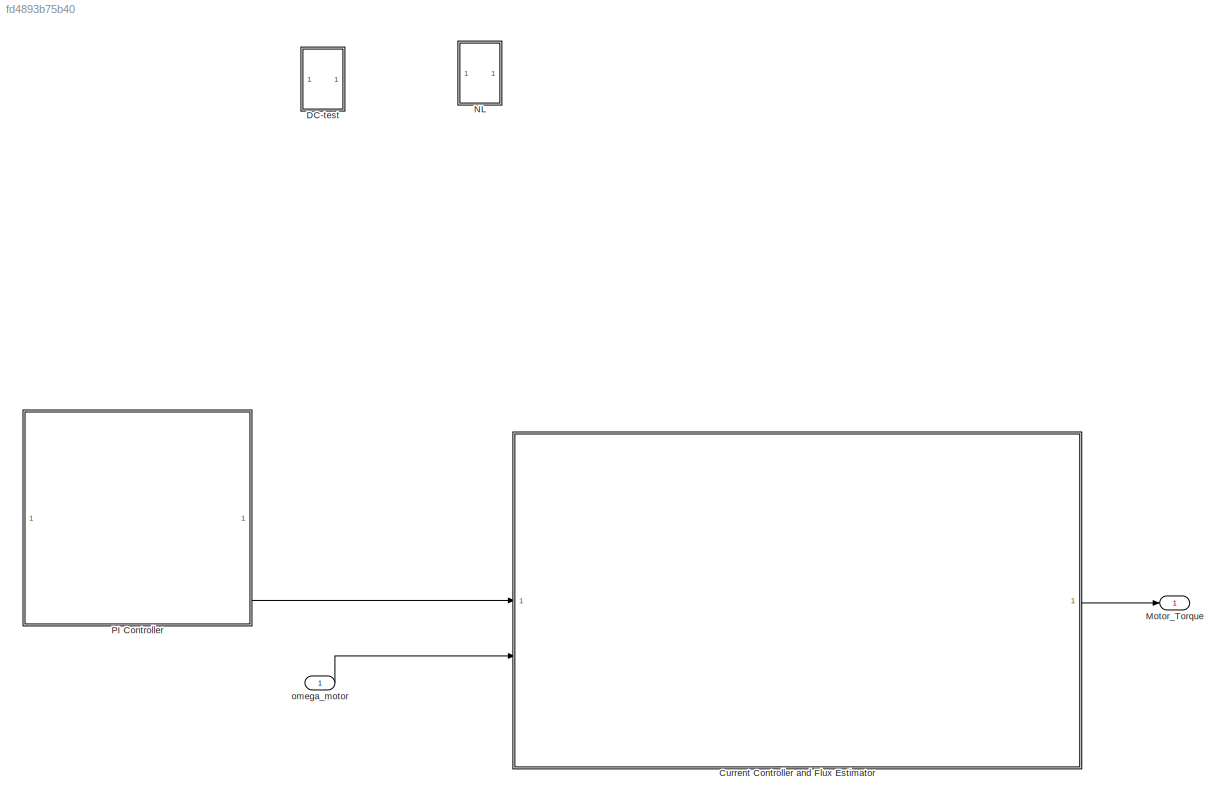
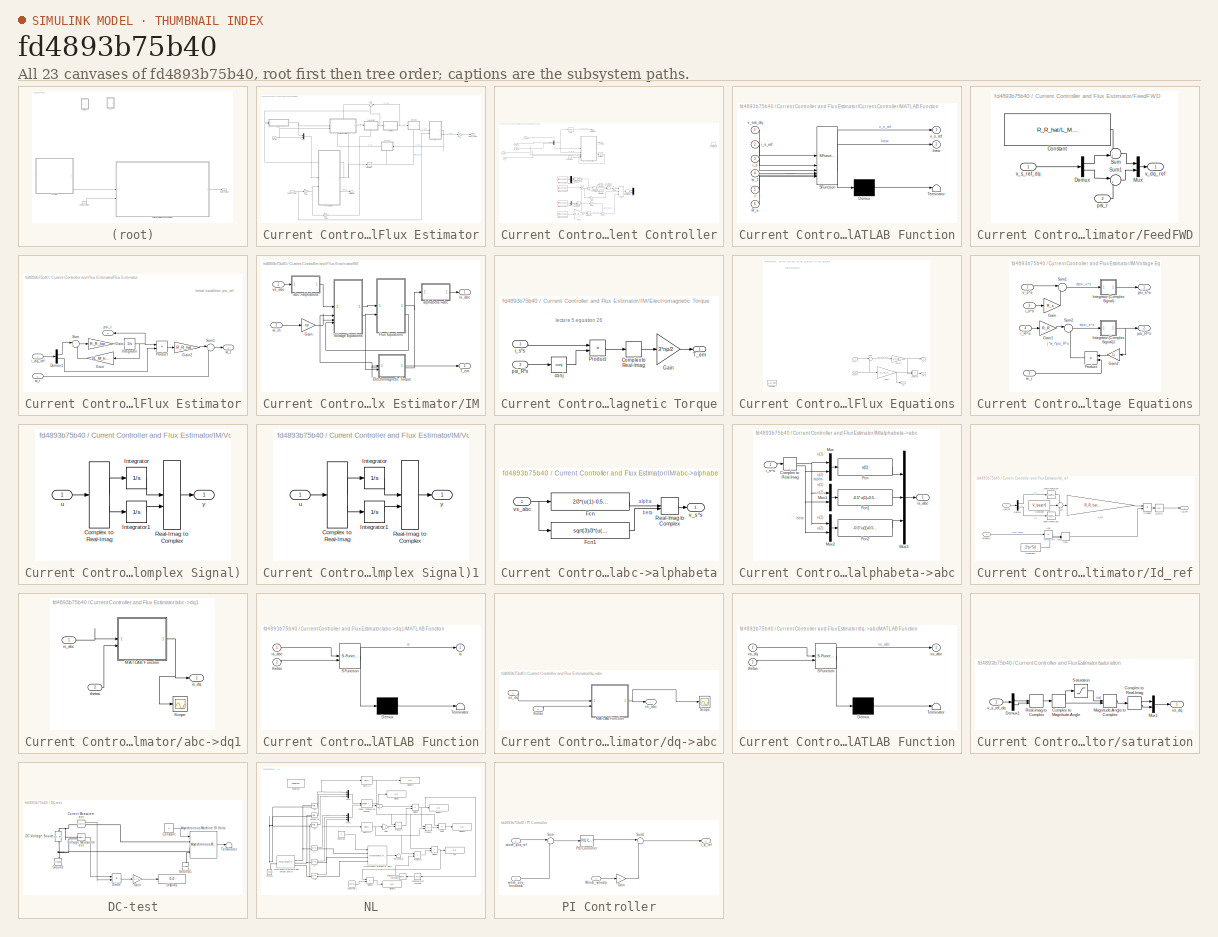
[diagram: thumbnail index - all 23 canvases of the model, root first then tree order]
MODEL slx_fd4893b75b40
KIND model
CONFIG AbsTol = auto
CONFIG EnableMultiTasking = off
CONFIG FixedStep = auto
CONFIG MaxStep = auto
CONFIG MinStep = auto
CONFIG RelTol = 1e-3
CONFIG SampleTimeConstraint = Unconstrained
CONFIG SolverName = VariableStepAuto
CONFIG StartTime = 0.0
CONFIG StopTime = 10.0
WORKSPACE source: MATLAB code (in-file)
WORKSPACE m_pl = 1000
WORKSPACE r_d = 0.035
WORKSPACE ig = 5
WORKSPACE J_drum = 0.0006125
WORKSPACE b_hat = 0.001
WORKSPACE np = 2
WORKSPACE P_N = 15000
WORKSPACE n_eff = 0.917
WORKSPACE n_rpm = 1469
WORKSPACE pf = 0.84
WORKSPACE I_N = 29
WORKSPACE Is_In = 8
WORKSPACE T_n = 97.5
WORKSPACE Ti_Tn = 3.1
WORKSPACE Tb_Tn = 3.6
WORKSPACE J_motor = 0.13
WORKSPACE R_R_hat = 0.2052
WORKSPACE X_M_opt = 15.1061
WORKSPACE X_sig_opt = 0.3774
WORKSPACE omega_rN = 307.6666
WORKSPACE omega_N = 314.1593
WORKSPACE omega1 = omega_rN  (= 307.6666)
WORKSPACE L_M_hat = X_M_opt/omega1  (= 0.0490989272154)
WORKSPACE L_sig_hat = X_sig_opt/omega1  (= 0.00122665248682)
WORKSPACE R_s = 0.619
WORKSPACE psi_ref = 20*P_N/(sqrt(2)*pi*np*I_N*n_rpm)
WORKSPACE V_base = 400*sqrt(2)/sqrt(3)
WORKSPACE I_max = I_N*3  (= 87)
WORKSPACE t_r = 1e-3  (= 0.001)
WORKSPACE w_BW = log(9)/t_r
WORKSPACE w_BWs = 0.1*w_BW
WORKSPACE J_hat = m_pl*((r_d/(ig))^2) + J_drum*((1/ig)^2) + J_motor  (= 0.1790245)
WORKSPACE kps = 2*J_hat*w_BWs/(3*np^2*psi_ref)
WORKSPACE kis = w_BWs^2*2*J_hat/(3*np^2*psi_ref)
WORKSPACE Ba = 2*J_hat/(3*np^2*psi_ref)*(w_BWs-b_hat/J_hat)
WORKSPACE kp = w_BW*L_sig_hat
WORKSPACE ki = w_BW^2*L_sig_hat
WORKSPACE Ra = w_BW*L_sig_hat - (R_R_hat + R_s)
WORKSPACE R = R_R_hat + R_s  (= 0.8242)
BLOCK [SubSystem] Current Controller and Flux Estimator
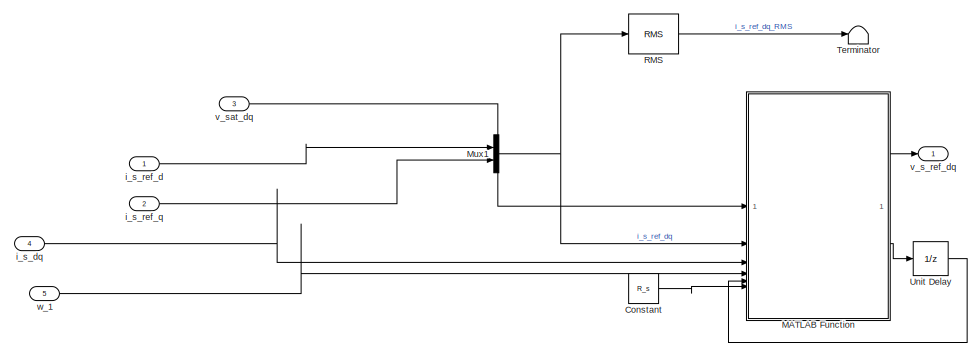
[diagram: Current Controller and Flux Estimator/Current Controller - part 1/3, top left region]
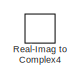
[diagram: Current Controller and Flux Estimator/Current Controller - part 2/3, top right region]
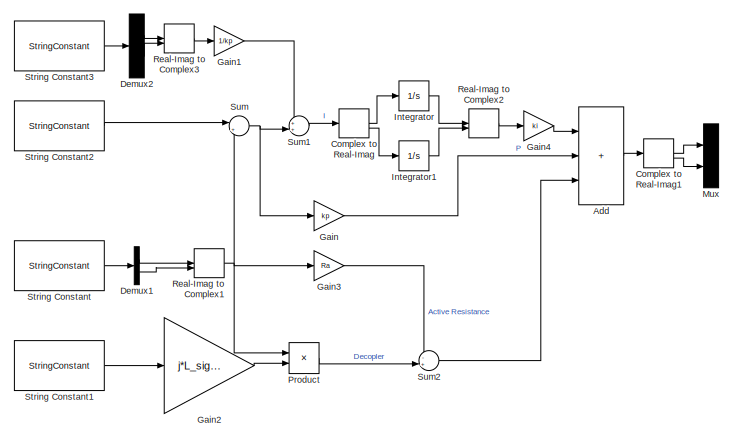
[diagram: Current Controller and Flux Estimator/Current Controller - part 3/3, bottom center region]
BLOCK [SubSystem] Current Controller and Flux Estimator/Current Controller
  PortSchema = {"entries":[{"content":{"sides":[{"content":{"connectorIds":["In1","In2"]},"type":"ConnectorPlacement.EquallySpacedRectSide","uuid":"97c548b6-6990-4323-a853-1e64e742285c"},{"content":{"connectorIds":["Out1"],"side":"RIGHT"},"type":"ConnectorPlacement.EquallySpacedRectSide","uuid":"cacb7644-0a67-4de4-9bb2-887734fe331a"},{"content":{"connectorIds":["In3"],"side":"TOP"},"type":"ConnectorPlacement.Equ...<+406ch>
BLOCK [Sum] Current Controller and Flux Estimator/Current Controller/Add
  Commented = on
  IconShape = rectangular
  Inputs = +++
BLOCK [ComplexToRealImag] Current Controller and Flux Estimator/Current Controller/Complex to Real-Imag
  Commented = on
BLOCK [ComplexToRealImag] Current Controller and Flux Estimator/Current Controller/Complex to Real-Imag1
  Commented = on
BLOCK [Constant] Current Controller and Flux Estimator/Current Controller/Constant
  Value = R_s
BLOCK [Demux] Current Controller and Flux Estimator/Current Controller/Demux1
  Commented = on
  Outputs = 2
BLOCK [Demux] Current Controller and Flux Estimator/Current Controller/Demux2
  Commented = on
  Outputs = 2
BLOCK [Gain] Current Controller and Flux Estimator/Current Controller/Gain
  Commented = on
  Gain = kp
BLOCK [Gain] Current Controller and Flux Estimator/Current Controller/Gain1
  Commented = on
  Gain = 1/kp
BLOCK [Gain] Current Controller and Flux Estimator/Current Controller/Gain2
  Commented = on
  Gain = j*L_sig_hat
BLOCK [Gain] Current Controller and Flux Estimator/Current Controller/Gain3
  Commented = on
  Gain = Ra
BLOCK [Gain] Current Controller and Flux Estimator/Current Controller/Gain4
  Commented = on
  Gain = ki
BLOCK [Integrator] Current Controller and Flux Estimator/Current Controller/Integrator
  Commented = on
BLOCK [Integrator] Current Controller and Flux Estimator/Current Controller/Integrator1
  Commented = on
BLOCK [SubSystem] Current Controller and Flux Estimator/Current Controller/MATLAB Function
  ErrorFcn = Stateflow.Translate.translate
  PermitHierarchicalResolution = ExplicitOnly
  SFBlockType = MATLAB Function
  TreatAsAtomicUnit = on
BLOCK [Demux] Current Controller and Flux Estimator/Current Controller/MATLAB Function/ Demux 
  Outputs = 1
BLOCK [S-Function] Current Controller and Flux Estimator/Current Controller/MATLAB Function/ SFunction 
  EnableBusSupport = off
  FunctionName = sf_sfun
  Parameters = L_sig_hat,R_R_hat,Ts,w_BW
  PortCounts = [6 3]
  SFcnIsStateOwnerBlock = off
  SFunctionDeploymentMode = off
  Tag = Stateflow S-Function 5
BLOCK [Terminator] Current Controller and Flux Estimator/Current Controller/MATLAB Function/ Terminator 
BLOCK [Inport] Current Controller and Flux Estimator/Current Controller/MATLAB Function/I
  Port = 5
BLOCK [Outport] Current Controller and Flux Estimator/Current Controller/MATLAB Function/Inew
  Port = 2
BLOCK [Inport] Current Controller and Flux Estimator/Current Controller/MATLAB Function/R_s
  Port = 6
BLOCK [Inport] Current Controller and Flux Estimator/Current Controller/MATLAB Function/i_s
  Port = 3
BLOCK [Inport] Current Controller and Flux Estimator/Current Controller/MATLAB Function/i_s_ref
  Port = 2
BLOCK [Outport] Current Controller and Flux Estimator/Current Controller/MATLAB Function/v_s_ref
BLOCK [Inport] Current Controller and Flux Estimator/Current Controller/MATLAB Function/v_sat_dq
BLOCK [Inport] Current Controller and Flux Estimator/Current Controller/MATLAB Function/w_1
  Port = 4
BLOCK [Mux] Current Controller and Flux Estimator/Current Controller/Mux
  Commented = on
  DisplayOption = bar
  Inputs = 2
BLOCK [Mux] Current Controller and Flux Estimator/Current Controller/Mux1
  DisplayOption = bar
  Inputs = 2
BLOCK [Product] Current Controller and Flux Estimator/Current Controller/Product
  Commented = on
BLOCK [Reference] Current Controller and Flux Estimator/Current Controller/RMS  REF=spsRMSLib/RMS
  SourceBlock = spsRMSLib/RMS
  SourceType = RMS
BLOCK [RealImagToComplex] Current Controller and Flux Estimator/Current Controller/Real-Imag to Complex1
  Commented = on
BLOCK [RealImagToComplex] Current Controller and Flux Estimator/Current Controller/Real-Imag to Complex2
  Commented = on
BLOCK [RealImagToComplex] Current Controller and Flux Estimator/Current Controller/Real-Imag to Complex3
  Commented = on
BLOCK [RealImagToComplex] Current Controller and Flux Estimator/Current Controller/Real-Imag to Complex4
BLOCK [StringConstant] Current Controller and Flux Estimator/Current Controller/String Constant
  Commented = on
  String = i_s_dq
BLOCK [StringConstant] Current Controller and Flux Estimator/Current Controller/String Constant1
  Commented = on
  String = w_1
BLOCK [StringConstant] Current Controller and Flux Estimator/Current Controller/String Constant2
  Commented = on
  String = i_s_ref_dq
BLOCK [StringConstant] Current Controller and Flux Estimator/Current Controller/String Constant3
  Commented = on
  String = v_sat_dq
BLOCK [Sum] Current Controller and Flux Estimator/Current Controller/Sum
  Commented = on
  Inputs = |+-
BLOCK [Sum] Current Controller and Flux Estimator/Current Controller/Sum1
  Commented = on
  Inputs = ++|
BLOCK [Sum] Current Controller and Flux Estimator/Current Controller/Sum2
  Commented = on
  Inputs = -+|
BLOCK [Terminator] Current Controller and Flux Estimator/Current Controller/Terminator
BLOCK [UnitDelay] Current Controller and Flux Estimator/Current Controller/Unit Delay
  HasFrameUpgradeWarning = on
  SampleTime = -1
BLOCK [Inport] Current Controller and Flux Estimator/Current Controller/i_s_dq
  Port = 4
BLOCK [Inport] Current Controller and Flux Estimator/Current Controller/i_s_ref_d
BLOCK [Inport] Current Controller and Flux Estimator/Current Controller/i_s_ref_q
  Port = 2
BLOCK [Outport] Current Controller and Flux Estimator/Current Controller/v_s_ref_dq
  PortDimensions = 2
BLOCK [Inport] Current Controller and Flux Estimator/Current Controller/v_sat_dq
  Port = 3
BLOCK [Inport] Current Controller and Flux Estimator/Current Controller/w_1
  Port = 5
BLOCK [SubSystem] Current Controller and Flux Estimator/FeedFWD
  AttributesFormatString = %<MinAlgLoopOccurrences>
  PortSchema = {"entries":[{"content":{"sides":[{"content":{"connectorIds":["In1"]},"type":"ConnectorPlacement.EquallySpacedRectSide","uuid":"8794a64f-49ba-4da5-9b58-fd7208420cfd"},{"content":{"connectorIds":["Out1"],"side":"RIGHT"},"type":"ConnectorPlacement.EquallySpacedRectSide","uuid":"2b8697f1-b735-400e-94f4-d8410b9cec93"},{"content":{"connectorIds":[],"side":"TOP"},"type":"ConnectorPlacement.EquallySpacedR...<+389ch>
BLOCK [Constant] Current Controller and Flux Estimator/FeedFWD/Constant
  Value = R_R_hat/L_M_hat * psi_ref
BLOCK [Demux] Current Controller and Flux Estimator/FeedFWD/Demux
  Outputs = 2
BLOCK [Mux] Current Controller and Flux Estimator/FeedFWD/Mux
  DisplayOption = bar
  Inputs = 2
BLOCK [Sum] Current Controller and Flux Estimator/FeedFWD/Sum
  Inputs = -+|
BLOCK [Sum] Current Controller and Flux Estimator/FeedFWD/Sum1
  Inputs = |++
BLOCK [Inport] Current Controller and Flux Estimator/FeedFWD/psi_r
  Port = 2
BLOCK [Outport] Current Controller and Flux Estimator/FeedFWD/v_dq_ref
BLOCK [Inport] Current Controller and Flux Estimator/FeedFWD/v_s_ref_dq
BLOCK [SubSystem] Current Controller and Flux Estimator/Flux Estimator
BLOCK [Demux] Current Controller and Flux Estimator/Flux Estimator/Demux1
  Outputs = 2
BLOCK [Gain] Current Controller and Flux Estimator/Flux Estimator/Gain
  Gain = 1/L_M_hat
BLOCK [Gain] Current Controller and Flux Estimator/Flux Estimator/Gain1
  Gain = R_R_hat
BLOCK [Gain] Current Controller and Flux Estimator/Flux Estimator/Gain2
  Gain = R_R_hat
BLOCK [Integrator] Current Controller and Flux Estimator/Flux Estimator/Integrator
  InitialCondition = psi_ref
BLOCK [Product] Current Controller and Flux Estimator/Flux Estimator/Product
  Inputs = /*
BLOCK [Sum] Current Controller and Flux Estimator/Flux Estimator/Sum
  Inputs = |+-
BLOCK [Sum] Current Controller and Flux Estimator/Flux Estimator/Sum1
  Inputs = |++
BLOCK [Inport] Current Controller and Flux Estimator/Flux Estimator/i_dq_ref
BLOCK [Outport] Current Controller and Flux Estimator/Flux Estimator/psi_r
  NameLocation = top
  Port = 2
BLOCK [Outport] Current Controller and Flux Estimator/Flux Estimator/w_1
BLOCK [Inport] Current Controller and Flux Estimator/Flux Estimator/w_r
  Port = 2
BLOCK [Gain] Current Controller and Flux Estimator/Gain
  Gain = np
BLOCK [Gain] Current Controller and Flux Estimator/Gain1
  Gain = psi_ref
BLOCK [SubSystem] Current Controller and Flux Estimator/IM
BLOCK [SubSystem] Current Controller and Flux Estimator/IM/Electromagnetic Torque
BLOCK [ComplexToRealImag] Current Controller and Flux Estimator/IM/Electromagnetic Torque/Complex to Real-Imag
  Output = Imag
BLOCK [Gain] Current Controller and Flux Estimator/IM/Electromagnetic Torque/Gain
  Gain = 3*np/2
BLOCK [Product] Current Controller and Flux Estimator/IM/Electromagnetic Torque/Product
BLOCK [Outport] Current Controller and Flux Estimator/IM/Electromagnetic Torque/T_em
BLOCK [Math] Current Controller and Flux Estimator/IM/Electromagnetic Torque/conj
  Operator = conj
BLOCK [Inport] Current Controller and Flux Estimator/IM/Electromagnetic Torque/i_s^s
BLOCK [Inport] Current Controller and Flux Estimator/IM/Electromagnetic Torque/psi_R^s
  Port = 2
BLOCK [SubSystem] Current Controller and Flux Estimator/IM/Flux Equations
BLOCK [Constant] Current Controller and Flux Estimator/IM/Flux Equations/Constant
  Value = L_M_hat
BLOCK [Gain] Current Controller and Flux Estimator/IM/Flux Equations/Eq(16)
  Gain = 1/L_sig_hat
BLOCK [Gain] Current Controller and Flux Estimator/IM/Flux Equations/Gain1
  Gain = 1/L_M_hat
BLOCK [Outport] Current Controller and Flux Estimator/IM/Flux Equations/I_M
  Port = 3
BLOCK [Sum] Current Controller and Flux Estimator/IM/Flux Equations/Subtract
  IconShape = rectangular
  Inputs = +-
BLOCK [Sum] Current Controller and Flux Estimator/IM/Flux Equations/Sum
  Inputs = |+-
BLOCK [Outport] Current Controller and Flux Estimator/IM/Flux Equations/i_R^s
  Port = 2
BLOCK [Outport] Current Controller and Flux Estimator/IM/Flux Equations/i_s^s
BLOCK [Inport] Current Controller and Flux Estimator/IM/Flux Equations/psi_R^s
  Port = 2
BLOCK [Inport] Current Controller and Flux Estimator/IM/Flux Equations/psi_s^s
BLOCK [Gain] Current Controller and Flux Estimator/IM/Gain
  Gain = np
  OutDataTypeStr = Inherit: Same as input
  ParamDataTypeStr = Inherit: Same as input
  SaturateOnIntegerOverflow = on
BLOCK [Outport] Current Controller and Flux Estimator/IM/T_em
  Port = 2
BLOCK [SubSystem] Current Controller and Flux Estimator/IM/Voltage Equations
BLOCK [Gain] Current Controller and Flux Estimator/IM/Voltage Equations/Gain
  Gain = R_s
BLOCK [Gain] Current Controller and Flux Estimator/IM/Voltage Equations/Gain1
  Gain = R_R
BLOCK [Gain] Current Controller and Flux Estimator/IM/Voltage Equations/Gain2
  Gain = 1j
BLOCK [SubSystem] Current Controller and Flux Estimator/IM/Voltage Equations/Integrator (Complex Signal)
BLOCK [ComplexToRealImag] Current Controller and Flux Estimator/IM/Voltage Equations/Integrator (Complex Signal)/Complex to Real-Imag
BLOCK [Integrator] Current Controller and Flux Estimator/IM/Voltage Equations/Integrator (Complex Signal)/Integrator
  InitialCondition = psi_ref
BLOCK [Integrator] Current Controller and Flux Estimator/IM/Voltage Equations/Integrator (Complex Signal)/Integrator1
BLOCK [RealImagToComplex] Current Controller and Flux Estimator/IM/Voltage Equations/Integrator (Complex Signal)/Real-Imag to Complex
BLOCK [Inport] Current Controller and Flux Estimator/IM/Voltage Equations/Integrator (Complex Signal)/u
BLOCK [Outport] Current Controller and Flux Estimator/IM/Voltage Equations/Integrator (Complex Signal)/y
BLOCK [SubSystem] Current Controller and Flux Estimator/IM/Voltage Equations/Integrator (Complex Signal)1
BLOCK [ComplexToRealImag] Current Controller and Flux Estimator/IM/Voltage Equations/Integrator (Complex Signal)1/Complex to Real-Imag
BLOCK [Integrator] Current Controller and Flux Estimator/IM/Voltage Equations/Integrator (Complex Signal)1/Integrator
  InitialCondition = psi_ref
BLOCK [Integrator] Current Controller and Flux Estimator/IM/Voltage Equations/Integrator (Complex Signal)1/Integrator1
BLOCK [RealImagToComplex] Current Controller and Flux Estimator/IM/Voltage Equations/Integrator (Complex Signal)1/Real-Imag to Complex
BLOCK [Inport] Current Controller and Flux Estimator/IM/Voltage Equations/Integrator (Complex Signal)1/u
BLOCK [Outport] Current Controller and Flux Estimator/IM/Voltage Equations/Integrator (Complex Signal)1/y
BLOCK [Product] Current Controller and Flux Estimator/IM/Voltage Equations/Product
  RndMeth = Zero
BLOCK [Sum] Current Controller and Flux Estimator/IM/Voltage Equations/Sum1
  Inputs = |+-
BLOCK [Sum] Current Controller and Flux Estimator/IM/Voltage Equations/Sum2
  Inputs = |-+
BLOCK [Inport] Current Controller and Flux Estimator/IM/Voltage Equations/i_R^s
  Port = 4
BLOCK [Inport] Current Controller and Flux Estimator/IM/Voltage Equations/i_s^s
  Port = 2
BLOCK [Outport] Current Controller and Flux Estimator/IM/Voltage Equations/psi_R^s
  Port = 2
BLOCK [Outport] Current Controller and Flux Estimator/IM/Voltage Equations/psi_s^s
BLOCK [Inport] Current Controller and Flux Estimator/IM/Voltage Equations/v_s^s
BLOCK [Inport] Current Controller and Flux Estimator/IM/Voltage Equations/w_r
  Port = 3
BLOCK [SubSystem] Current Controller and Flux Estimator/IM/abc->alphabeta
BLOCK [Fcn] Current Controller and Flux Estimator/IM/abc->alphabeta/Fcn
  Expr = 2/3*(u(1)-0.5*u(2)-0.5*u(3))
BLOCK [Fcn] Current Controller and Flux Estimator/IM/abc->alphabeta/Fcn1
  Expr = sqrt(3)/3*(u(2)-u(3))
BLOCK [RealImagToComplex] Current Controller and Flux Estimator/IM/abc->alphabeta/Real-Imag to Complex
BLOCK [Outport] Current Controller and Flux Estimator/IM/abc->alphabeta/v_s^s
BLOCK [Inport] Current Controller and Flux Estimator/IM/abc->alphabeta/vs_abc
BLOCK [SubSystem] Current Controller and Flux Estimator/IM/alphabeta->abc
BLOCK [ComplexToRealImag] Current Controller and Flux Estimator/IM/alphabeta->abc/Complex to Real-Imag
BLOCK [Fcn] Current Controller and Flux Estimator/IM/alphabeta->abc/Fcn
  Expr = u(1)
BLOCK [Fcn] Current Controller and Flux Estimator/IM/alphabeta->abc/Fcn1
  Expr = -0.5*u(1)+0.5*sqrt(3)*u(2)
BLOCK [Fcn] Current Controller and Flux Estimator/IM/alphabeta->abc/Fcn2
  Expr = -0.5*u(1)-0.5*sqrt(3)*u(2)
BLOCK [Mux] Current Controller and Flux Estimator/IM/alphabeta->abc/Mux
  DisplayOption = bar
  Inputs = 2
BLOCK [Mux] Current Controller and Flux Estimator/IM/alphabeta->abc/Mux1
  DisplayOption = bar
  Inputs = 2
BLOCK [Mux] Current Controller and Flux Estimator/IM/alphabeta->abc/Mux2
  DisplayOption = bar
  Inputs = 2
BLOCK [Mux] Current Controller and Flux Estimator/IM/alphabeta->abc/Mux3
  DisplayOption = bar
  Inputs = 3
BLOCK [Inport] Current Controller and Flux Estimator/IM/alphabeta->abc/i_s^s
BLOCK [Outport] Current Controller and Flux Estimator/IM/alphabeta->abc/is_abc
BLOCK [Outport] Current Controller and Flux Estimator/IM/is_abc
BLOCK [Inport] Current Controller and Flux Estimator/IM/vs_abc
BLOCK [Inport] Current Controller and Flux Estimator/IM/w_m
  Port = 2
BLOCK [SubSystem] Current Controller and Flux Estimator/Id_ref
BLOCK [Abs] Current Controller and Flux Estimator/Id_ref/Abs
  SaturateOnIntegerOverflow = off
BLOCK [Constant] Current Controller and Flux Estimator/Id_ref/Constant
  Value = V_base^2
BLOCK [Constant] Current Controller and Flux Estimator/Id_ref/Constant2
  Value = 2*pi*50
BLOCK [Demux] Current Controller and Flux Estimator/Id_ref/Demux
  Outputs = 2
BLOCK [Integrator] Current Controller and Flux Estimator/Id_ref/Limits
  InitialCondition = psi_ref/L_M_hat
  LimitOutput = on
  LowerSaturationLimit = 0.1*psi_ref/L_M_hat
  UpperSaturationLimit = psi_ref/L_M_hat
BLOCK [Math] Current Controller and Flux Estimator/Id_ref/Math Function
  Operator = magnitude^2
BLOCK [Math] Current Controller and Flux Estimator/Id_ref/Math Function1
  Operator = magnitude^2
BLOCK [MinMax] Current Controller and Flux Estimator/Id_ref/Max
  Function = max
  Inputs = 2
BLOCK [Product] Current Controller and Flux Estimator/Id_ref/Product
  Inputs = */
BLOCK [Sum] Current Controller and Flux Estimator/Id_ref/Sum
  Inputs = -+-
BLOCK [Outport] Current Controller and Flux Estimator/Id_ref/i_d_ref
BLOCK [Gain] Current Controller and Flux Estimator/Id_ref/k_fw
  Gain = R_R_hat/((L_sig_hat^2)*V_base)
BLOCK [Inport] Current Controller and Flux Estimator/Id_ref/omega_1
  Port = 2
BLOCK [Inport] Current Controller and Flux Estimator/Id_ref/v_dq_ref
BLOCK [Integrator] Current Controller and Flux Estimator/Integrator
BLOCK [Outport] Current Controller and Flux Estimator/Motor_Torque
BLOCK [Mux] Current Controller and Flux Estimator/Mux
  DisplayOption = bar
  Inputs = 2
BLOCK [Sum] Current Controller and Flux Estimator/Sum
  Inputs = |+-
  NameLocation = top
BLOCK [Terminator] Current Controller and Flux Estimator/Terminator
BLOCK [SubSystem] Current Controller and Flux Estimator/abc->dq1
  NameLocation = top
  PortSchema = {"entries":[{"content":{"sides":[{"content":{"connectorIds":["In1"]},"type":"ConnectorPlacement.EquallySpacedRectSide","uuid":"c3863cce-4a98-427c-9e63-89298f679a84"},{"content":{"connectorIds":["Out1"],"side":"RIGHT"},"type":"ConnectorPlacement.EquallySpacedRectSide","uuid":"ae3c4991-ab62-4114-9bee-e9a7348a29ce"},{"content":{"side":"TOP"},"type":"ConnectorPlacement.EquallySpacedRectSide","uuid":"f...<+371ch>
BLOCK [SubSystem] Current Controller and Flux Estimator/abc->dq1/MATLAB Function
  ErrorFcn = Stateflow.Translate.translate
  PermitHierarchicalResolution = ExplicitOnly
  SFBlockType = MATLAB Function
  TreatAsAtomicUnit = on
BLOCK [Demux] Current Controller and Flux Estimator/abc->dq1/MATLAB Function/ Demux 
  Outputs = 1
BLOCK [S-Function] Current Controller and Flux Estimator/abc->dq1/MATLAB Function/ SFunction 
  EnableBusSupport = off
  FunctionName = sf_sfun
  PortCounts = [2 2]
  SFcnIsStateOwnerBlock = off
  SFunctionDeploymentMode = off
  Tag = Stateflow S-Function 7
BLOCK [Terminator] Current Controller and Flux Estimator/abc->dq1/MATLAB Function/ Terminator 
BLOCK [Outport] Current Controller and Flux Estimator/abc->dq1/MATLAB Function/is
BLOCK [Inport] Current Controller and Flux Estimator/abc->dq1/MATLAB Function/is_abc
BLOCK [Inport] Current Controller and Flux Estimator/abc->dq1/MATLAB Function/thetas
  Port = 2
BLOCK [Scope] Current Controller and Flux Estimator/abc->dq1/Scope
  Floating = off
  NumInputPorts = 1
  ScopeSpecificationString = Simulink.scopes.TimeScopeBlockCfg('CurrentConfiguration', extmgr.ConfigurationSet(extmgr.Configuration('Core','General UI',true),extmgr.Configuration('Core','Source UI',true),extmgr.Configuration('Sources','WiredSimulink',true,'DataLoggingVariableName','ScopeData2'),extmgr.Configuration('Visuals','Time Domain',true,'SerializedDisplays',{struct('MinYLimReal','-294.45962','MaxYLimReal','234.31066','...<+1410ch>
BLOCK [Inport] Current Controller and Flux Estimator/abc->dq1/is_abc
BLOCK [Outport] Current Controller and Flux Estimator/abc->dq1/is_dq
BLOCK [Inport] Current Controller and Flux Estimator/abc->dq1/thetas
  Port = 2
BLOCK [SubSystem] Current Controller and Flux Estimator/dq->abc
  NameLocation = top
  PortSchema = {"entries":[{"content":{"sides":[{"content":{"connectorIds":["In1"]},"type":"ConnectorPlacement.EquallySpacedRectSide","uuid":"c3863cce-4a98-427c-9e63-89298f679a84"},{"content":{"connectorIds":["Out1"],"side":"RIGHT"},"type":"ConnectorPlacement.EquallySpacedRectSide","uuid":"ae3c4991-ab62-4114-9bee-e9a7348a29ce"},{"content":{"connectorIds":[],"side":"TOP"},"type":"ConnectorPlacement.EquallySpacedR...<+389ch>
BLOCK [SubSystem] Current Controller and Flux Estimator/dq->abc/MATLAB Function
  ErrorFcn = Stateflow.Translate.translate
  PermitHierarchicalResolution = ExplicitOnly
  SFBlockType = MATLAB Function
  TreatAsAtomicUnit = on
BLOCK [Demux] Current Controller and Flux Estimator/dq->abc/MATLAB Function/ Demux 
  Outputs = 1
BLOCK [S-Function] Current Controller and Flux Estimator/dq->abc/MATLAB Function/ SFunction 
  EnableBusSupport = off
  FunctionName = sf_sfun
  PortCounts = [2 2]
  SFcnIsStateOwnerBlock = off
  SFunctionDeploymentMode = off
  Tag = Stateflow S-Function 6
BLOCK [Terminator] Current Controller and Flux Estimator/dq->abc/MATLAB Function/ Terminator 
BLOCK [Inport] Current Controller and Flux Estimator/dq->abc/MATLAB Function/thetas
  Port = 2
BLOCK [Outport] Current Controller and Flux Estimator/dq->abc/MATLAB Function/vs_abc
BLOCK [Inport] Current Controller and Flux Estimator/dq->abc/MATLAB Function/vs_dq
BLOCK [Scope] Current Controller and Flux Estimator/dq->abc/Scope
  Floating = off
  NumInputPorts = 1
  ScopeSpecificationString = Simulink.scopes.TimeScopeBlockCfg('CurrentConfiguration', extmgr.ConfigurationSet(extmgr.Configuration('Core','General UI',true),extmgr.Configuration('Core','Source UI',true),extmgr.Configuration('Sources','WiredSimulink',true,'DataLoggingVariableName','ScopeData1'),extmgr.Configuration('Visuals','Time Domain',true,'SerializedDisplays',{struct('MinYLimReal','-79.19571','MaxYLimReal','146.12166','Y...<+1445ch>
BLOCK [Inport] Current Controller and Flux Estimator/dq->abc/thetas
  Port = 2
BLOCK [Outport] Current Controller and Flux Estimator/dq->abc/vs_abc
BLOCK [Inport] Current Controller and Flux Estimator/dq->abc/vs_dq
BLOCK [Inport] Current Controller and Flux Estimator/i_q_ref
BLOCK [Gain] Current Controller and Flux Estimator/ig
  Gain = 5
BLOCK [Inport] Current Controller and Flux Estimator/omega_motor
  Port = 2
BLOCK [SubSystem] Current Controller and Flux Estimator/saturation
BLOCK [ComplexToMagnitudeAngle] Current Controller and Flux Estimator/saturation/Complex to Magnitude-Angle
BLOCK [ComplexToRealImag] Current Controller and Flux Estimator/saturation/Complex to Real-Imag
BLOCK [Demux] Current Controller and Flux Estimator/saturation/Demux1
  Outputs = 2
BLOCK [MagnitudeAngleToComplex] Current Controller and Flux Estimator/saturation/Magnitude-Angle to Complex
BLOCK [Mux] Current Controller and Flux Estimator/saturation/Mux1
  DisplayOption = bar
  Inputs = 2
BLOCK [RealImagToComplex] Current Controller and Flux Estimator/saturation/Real-Imag to Complex
BLOCK [Saturate] Current Controller and Flux Estimator/saturation/Saturation
  LowerLimit = 0
  UpperLimit = 400*sqrt(2)*sqrt(3)
BLOCK [Inport] Current Controller and Flux Estimator/saturation/v_s_ref_dq
BLOCK [Outport] Current Controller and Flux Estimator/saturation/vs_dq
BLOCK [SubSystem] DC-test
  Commented = on
BLOCK [Reference] DC-test/Asynchronous Machine SI Units  REF=spsAsynchronousMachineSIUnitsLib/Asynchronous Machine
SI Units
  LibrarySourceBlock = sps_lib/Electrical Machines/Asynchronous Machine\nSI Units
  SourceBlock = spsAsynchronousMachineSIUnitsLib/Asynchronous Machine\nSI Units
  SourceType = Asynchronous Machine
BLOCK [Constant] DC-test/Constant
  Value = 0
BLOCK [Reference] DC-test/Current Measurement  REF=spsCurrentMeasurementLib/Current Measurement
  LibrarySourceBlock = sps_lib/Sensors and Measurements/Current Measurement
  SourceBlock = spsCurrentMeasurementLib/Current Measurement
  SourceType = Current Measurement
  UserDataPersistent = on
BLOCK [Reference] DC-test/DC Voltage Source  REF=spsDCVoltageSourceLib/DC Voltage Source
  LibrarySourceBlock = sps_lib/Sources/DC Voltage Source
  SourceBlock = spsDCVoltageSourceLib/DC Voltage Source
  SourceType = DC Voltage Source
BLOCK [Display] DC-test/Display
  Decimation = 1
BLOCK [Product] DC-test/Divide
  Inputs = */
BLOCK [Gain] DC-test/Gain
  Gain = 0.5 * 1.15
BLOCK [Reference] DC-test/Ground  REF=spsGroundLib/Ground
  LibrarySourceBlock = sps_lib/Utilities/Ground
  NameLocation = right
  SourceBlock = spsGroundLib/Ground
  SourceType = Ground
BLOCK [Reference] DC-test/Ground1  REF=spsGroundLib/Ground
  LibrarySourceBlock = sps_lib/Utilities/Ground
  NameLocation = right
  SourceBlock = spsGroundLib/Ground
  SourceType = Ground
BLOCK [Terminator] DC-test/Terminator
BLOCK [Reference] DC-test/Voltage Measurement  REF=spsVoltageMeasurementLib/Voltage Measurement
  LibrarySourceBlock = sps_lib/Sensors and Measurements/Voltage Measurement
  SourceBlock = spsVoltageMeasurementLib/Voltage Measurement
  SourceType = Voltage Measurement
  UserDataPersistent = on
BLOCK [Outport] Motor_Torque
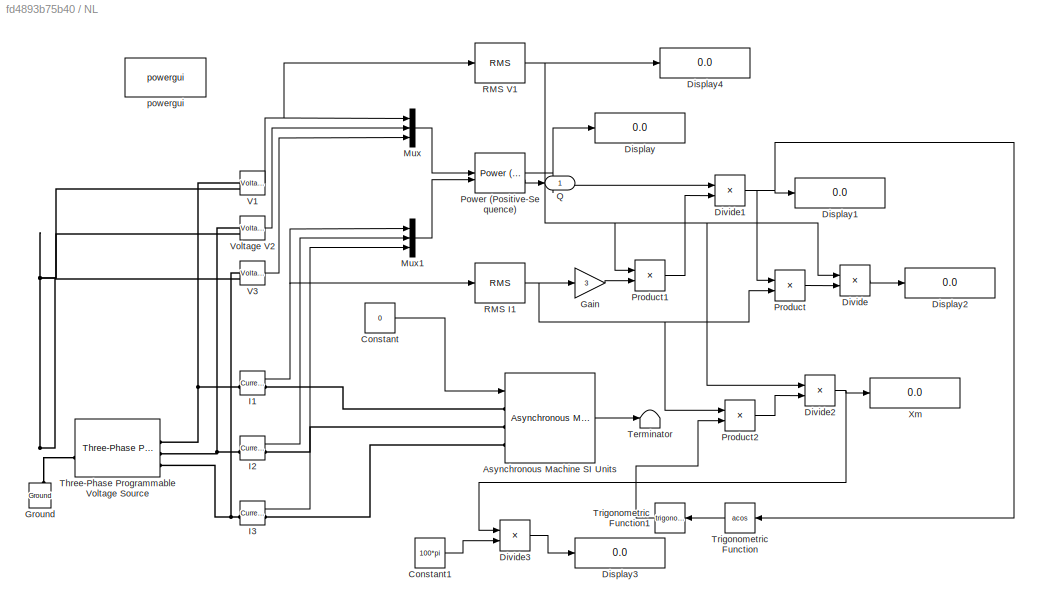
BLOCK [SubSystem] NL
  Commented = on
BLOCK [Reference] NL/Asynchronous Machine SI Units  REF=spsAsynchronousMachineSIUnitsLib/Asynchronous Machine
SI Units
  LibrarySourceBlock = sps_lib/Electrical Machines/Asynchronous Machine\nSI Units
  SourceBlock = spsAsynchronousMachineSIUnitsLib/Asynchronous Machine\nSI Units
  SourceType = Asynchronous Machine
BLOCK [Constant] NL/Constant
  Value = 0
BLOCK [Constant] NL/Constant1
  Value = 100*pi
BLOCK [Display] NL/Display
  Decimation = 1
BLOCK [Display] NL/Display1
  Decimation = 1
BLOCK [Display] NL/Display2
  Decimation = 1
BLOCK [Display] NL/Display3
  Decimation = 1
BLOCK [Display] NL/Display4
  Decimation = 1
BLOCK [Product] NL/Divide
  Inputs = */
BLOCK [Product] NL/Divide1
  Inputs = */
BLOCK [Product] NL/Divide2
  Inputs = */
BLOCK [Product] NL/Divide3
  Inputs = */
BLOCK [Gain] NL/Gain
  Gain = 3
BLOCK [Reference] NL/Ground  REF=spsGroundLib/Ground
  LibrarySourceBlock = sps_lib/Utilities/Ground
  NameLocation = right
  SourceBlock = spsGroundLib/Ground
  SourceType = Ground
BLOCK [Reference] NL/I1  REF=spsCurrentMeasurementLib/Current Measurement
  LibrarySourceBlock = sps_lib/Sensors and Measurements/Current Measurement
  SourceBlock = spsCurrentMeasurementLib/Current Measurement
  SourceType = Current Measurement
  UserDataPersistent = on
BLOCK [Reference] NL/I2  REF=spsCurrentMeasurementLib/Current Measurement
  LibrarySourceBlock = sps_lib/Sensors and Measurements/Current Measurement
  SourceBlock = spsCurrentMeasurementLib/Current Measurement
  SourceType = Current Measurement
  UserDataPersistent = on
BLOCK [Reference] NL/I3  REF=spsCurrentMeasurementLib/Current Measurement
  LibrarySourceBlock = sps_lib/Sensors and Measurements/Current Measurement
  SourceBlock = spsCurrentMeasurementLib/Current Measurement
  SourceType = Current Measurement
  UserDataPersistent = on
BLOCK [Mux] NL/Mux
  DisplayOption = bar
  Inputs = 3
BLOCK [Mux] NL/Mux1
  DisplayOption = bar
  Inputs = 3
BLOCK [Reference] NL/Power (Positive-Sequence)  REF=spsPowerPositiveSequenceLib/Power
(Positive-Sequence)
  LibrarySourceBlock = sps_lib/Sensors and Measurements/Power\n(Positive-Sequence)
  SourceBlock = spsPowerPositiveSequenceLib/Power\n(Positive-Sequence)
  SourceType = Power (Positive-Sequence)
BLOCK [Product] NL/Product
BLOCK [Product] NL/Product1
BLOCK [Product] NL/Product2
BLOCK [Outport] NL/Q
BLOCK [Reference] NL/RMS I1  REF=spsRMSLib/RMS
  LibrarySourceBlock = sps_lib/Sensors and Measurements/RMS
  SourceBlock = spsRMSLib/RMS
  SourceType = RMS
BLOCK [Reference] NL/RMS V1  REF=spsRMSLib/RMS
  LibrarySourceBlock = sps_lib/Sensors and Measurements/RMS
  SourceBlock = spsRMSLib/RMS
  SourceType = RMS
BLOCK [Terminator] NL/Terminator
BLOCK [Reference] NL/Three-Phase Programmable Voltage Source  REF=spsThreePhaseProgrammableVoltageSourceLib/Three-Phase
Programmable
Voltage Source
  LibrarySourceBlock = sps_lib/Sources/Three-Phase\nProgrammable\nVoltage Source
  SourceBlock = spsThreePhaseProgrammableVoltageSourceLib/Three-Phase\nProgrammable\nVoltage Source
  SourceType = Three-Phase Programmable Voltage Source
BLOCK [Trigonometry] NL/Trigonometric Function
  NameLocation = top
  Operator = acos
BLOCK [Trigonometry] NL/Trigonometric Function1
  NameLocation = top
BLOCK [Reference] NL/V1  REF=spsVoltageMeasurementLib/Voltage Measurement
  LibrarySourceBlock = sps_lib/Sensors and Measurements/Voltage Measurement
  SourceBlock = spsVoltageMeasurementLib/Voltage Measurement
  SourceType = Voltage Measurement
  UserDataPersistent = on
BLOCK [Reference] NL/V3  REF=spsVoltageMeasurementLib/Voltage Measurement
  LibrarySourceBlock = sps_lib/Sensors and Measurements/Voltage Measurement
  SourceBlock = spsVoltageMeasurementLib/Voltage Measurement
  SourceType = Voltage Measurement
  UserDataPersistent = on
BLOCK [Reference] NL/Voltage V2  REF=spsVoltageMeasurementLib/Voltage Measurement
  LibrarySourceBlock = sps_lib/Sensors and Measurements/Voltage Measurement
  SourceBlock = spsVoltageMeasurementLib/Voltage Measurement
  SourceType = Voltage Measurement
  UserDataPersistent = on
BLOCK [Display] NL/Xm
  Decimation = 1
BLOCK [Reference] NL/powergui  REF=spspowerguiLib/powergui
  LibrarySourceBlock = sps_lib/powergui
  Priority = 1
  SourceBlock = spspowerguiLib/powergui
  SourceType = PSB option menu block
BLOCK [SubSystem] PI Controller
BLOCK [Gain] PI Controller/Gain
BLOCK [Reference] PI Controller/PID Controller  REF=slpidlib/PID Controller
  LibrarySourceBlock = simulink/Continuous/PID Controller
  SourceBlock = slpidlib/PID Controller
  SourceType = PID 1dof
BLOCK [Sum] PI Controller/Sum
  Inputs = |+-
BLOCK [Sum] PI Controller/Sum1
  Inputs = |++
BLOCK [Inport] PI Controller/Winch_velocity
  Port = 3
BLOCK [Outport] PI Controller/i_q_ref
BLOCK [Inport] PI Controller/winch_pos_feedback
  Port = 2
BLOCK [Inport] PI Controller/winch_pos_ref
BLOCK [Inport] omega_motor
ANNOTATION Current Controller and Flux Estimator/Flux Estimator: Initial condition: psi_ref
ANNOTATION Current Controller and Flux Estimator/IM/Electromagnetic Torque: lecture 5 equation 26
ANNOTATION Current Controller and Flux Estimator/IM/Flux Equations: lecture 5 eq. 16 and 17
ANNOTATION Current Controller and Flux Estimator/IM/alphabeta->abc: u(1)
ANNOTATION Current Controller and Flux Estimator/IM/alphabeta->abc: u(2)
LINE Current Controller and Flux Estimator/Current Controller/Add:1 -> Current Controller and Flux Estimator/Current Controller/Complex to Real-Imag1:1
LINE Current Controller and Flux Estimator/Current Controller/Complex to Real-Imag1:1 -> Current Controller and Flux Estimator/Current Controller/Mux:1
LINE Current Controller and Flux Estimator/Current Controller/Complex to Real-Imag1:2 -> Current Controller and Flux Estimator/Current Controller/Mux:2
LINE Current Controller and Flux Estimator/Current Controller/Complex to Real-Imag:1 -> Current Controller and Flux Estimator/Current Controller/Integrator:1
LINE Current Controller and Flux Estimator/Current Controller/Complex to Real-Imag:2 -> Current Controller and Flux Estimator/Current Controller/Integrator1:1
LINE Current Controller and Flux Estimator/Current Controller/Constant:1 -> Current Controller and Flux Estimator/Current Controller/MATLAB Function:6
LINE Current Controller and Flux Estimator/Current Controller/Demux1:1 -> Current Controller and Flux Estimator/Current Controller/Real-Imag to Complex1:1
LINE Current Controller and Flux Estimator/Current Controller/Demux1:2 -> Current Controller and Flux Estimator/Current Controller/Real-Imag to Complex1:2
LINE Current Controller and Flux Estimator/Current Controller/Demux2:1 -> Current Controller and Flux Estimator/Current Controller/Real-Imag to Complex3:1
LINE Current Controller and Flux Estimator/Current Controller/Demux2:2 -> Current Controller and Flux Estimator/Current Controller/Real-Imag to Complex3:2
LINE Current Controller and Flux Estimator/Current Controller/Gain1:1 -> Current Controller and Flux Estimator/Current Controller/Sum1:1
LINE Current Controller and Flux Estimator/Current Controller/Gain2:1 -> Current Controller and Flux Estimator/Current Controller/Product:2
LINE Current Controller and Flux Estimator/Current Controller/Gain3:1 -> Current Controller and Flux Estimator/Current Controller/Sum2:1
LINE Current Controller and Flux Estimator/Current Controller/Gain4:1 -> Current Controller and Flux Estimator/Current Controller/Add:1
LINE Current Controller and Flux Estimator/Current Controller/Gain:1 -> Current Controller and Flux Estimator/Current Controller/Add:2
LINE Current Controller and Flux Estimator/Current Controller/Integrator1:1 -> Current Controller and Flux Estimator/Current Controller/Real-Imag to Complex2:2
LINE Current Controller and Flux Estimator/Current Controller/Integrator:1 -> Current Controller and Flux Estimator/Current Controller/Real-Imag to Complex2:1
LINE Current Controller and Flux Estimator/Current Controller/MATLAB Function:1 -> Current Controller and Flux Estimator/Current Controller/v_s_ref_dq:1
LINE Current Controller and Flux Estimator/Current Controller/MATLAB Function:2 -> Current Controller and Flux Estimator/Current Controller/Unit Delay:1
NET Current Controller and Flux Estimator/Current Controller/Mux1:1 -> Current Controller and Flux Estimator/Current Controller/MATLAB Function:2, Current Controller and Flux Estimator/Current Controller/RMS:1
LINE Current Controller and Flux Estimator/Current Controller/Product:1 -> Current Controller and Flux Estimator/Current Controller/Sum2:2
LINE Current Controller and Flux Estimator/Current Controller/RMS:1 -> Current Controller and Flux Estimator/Current Controller/Terminator:1
NET Current Controller and Flux Estimator/Current Controller/Real-Imag to Complex1:1 -> Current Controller and Flux Estimator/Current Controller/Gain3:1, Current Controller and Flux Estimator/Current Controller/Product:1, Current Controller and Flux Estimator/Current Controller/Sum:2
LINE Current Controller and Flux Estimator/Current Controller/Real-Imag to Complex2:1 -> Current Controller and Flux Estimator/Current Controller/Gain4:1
LINE Current Controller and Flux Estimator/Current Controller/Real-Imag to Complex3:1 -> Current Controller and Flux Estimator/Current Controller/Gain1:1
LINE Current Controller and Flux Estimator/Current Controller/String Constant1:1 -> Current Controller and Flux Estimator/Current Controller/Gain2:1
LINE Current Controller and Flux Estimator/Current Controller/String Constant2:1 -> Current Controller and Flux Estimator/Current Controller/Sum:1
LINE Current Controller and Flux Estimator/Current Controller/String Constant3:1 -> Current Controller and Flux Estimator/Current Controller/Demux2:1
LINE Current Controller and Flux Estimator/Current Controller/String Constant:1 -> Current Controller and Flux Estimator/Current Controller/Demux1:1
LINE Current Controller and Flux Estimator/Current Controller/Sum1:1 -> Current Controller and Flux Estimator/Current Controller/Complex to Real-Imag:1
LINE Current Controller and Flux Estimator/Current Controller/Sum2:1 -> Current Controller and Flux Estimator/Current Controller/Add:3
NET Current Controller and Flux Estimator/Current Controller/Sum:1 -> Current Controller and Flux Estimator/Current Controller/Gain:1, Current Controller and Flux Estimator/Current Controller/Sum1:2
LINE Current Controller and Flux Estimator/Current Controller/Unit Delay:1 -> Current Controller and Flux Estimator/Current Controller/MATLAB Function:5
LINE Current Controller and Flux Estimator/Current Controller/i_s_dq:1 -> Current Controller and Flux Estimator/Current Controller/MATLAB Function:3
LINE Current Controller and Flux Estimator/Current Controller/i_s_ref_d:1 -> Current Controller and Flux Estimator/Current Controller/Mux1:1
LINE Current Controller and Flux Estimator/Current Controller/i_s_ref_q:1 -> Current Controller and Flux Estimator/Current Controller/Mux1:2
LINE Current Controller and Flux Estimator/Current Controller/v_sat_dq:1 -> Current Controller and Flux Estimator/Current Controller/MATLAB Function:1
LINE Current Controller and Flux Estimator/Current Controller/w_1:1 -> Current Controller and Flux Estimator/Current Controller/MATLAB Function:4
LINE Current Controller and Flux Estimator/Current Controller:1 -> Current Controller and Flux Estimator/FeedFWD:1
LINE Current Controller and Flux Estimator/FeedFWD/Constant:1 -> Current Controller and Flux Estimator/FeedFWD/Sum:1
LINE Current Controller and Flux Estimator/FeedFWD/Demux:1 -> Current Controller and Flux Estimator/FeedFWD/Sum:2
LINE Current Controller and Flux Estimator/FeedFWD/Demux:2 -> Current Controller and Flux Estimator/FeedFWD/Sum1:1
LINE Current Controller and Flux Estimator/FeedFWD/Mux:1 -> Current Controller and Flux Estimator/FeedFWD/v_dq_ref:1
LINE Current Controller and Flux Estimator/FeedFWD/Sum1:1 -> Current Controller and Flux Estimator/FeedFWD/Mux:2
LINE Current Controller and Flux Estimator/FeedFWD/Sum:1 -> Current Controller and Flux Estimator/FeedFWD/Mux:1
LINE Current Controller and Flux Estimator/FeedFWD/psi_r:1 -> Current Controller and Flux Estimator/FeedFWD/Sum1:2
LINE Current Controller and Flux Estimator/FeedFWD/v_s_ref_dq:1 -> Current Controller and Flux Estimator/FeedFWD/Demux:1
NET Current Controller and Flux Estimator/FeedFWD:1 -> Current Controller and Flux Estimator/Id_ref:1, Current Controller and Flux Estimator/Sum:2, Current Controller and Flux Estimator/saturation:1
LINE Current Controller and Flux Estimator/Flux Estimator/Demux1:1 -> Current Controller and Flux Estimator/Flux Estimator/Sum:1
LINE Current Controller and Flux Estimator/Flux Estimator/Demux1:2 -> Current Controller and Flux Estimator/Flux Estimator/Product:2
LINE Current Controller and Flux Estimator/Flux Estimator/Gain1:1 -> Current Controller and Flux Estimator/Flux Estimator/Integrator:1
LINE Current Controller and Flux Estimator/Flux Estimator/Gain2:1 -> Current Controller and Flux Estimator/Flux Estimator/Sum1:1
LINE Current Controller and Flux Estimator/Flux Estimator/Gain:1 -> Current Controller and Flux Estimator/Flux Estimator/Sum:2
NET Current Controller and Flux Estimator/Flux Estimator/Integrator:1 -> Current Controller and Flux Estimator/Flux Estimator/Gain:1, Current Controller and Flux Estimator/Flux Estimator/Product:1, Current Controller and Flux Estimator/Flux Estimator/psi_r:1
LINE Current Controller and Flux Estimator/Flux Estimator/Product:1 -> Current Controller and Flux Estimator/Flux Estimator/Gain2:1
LINE Current Controller and Flux Estimator/Flux Estimator/Sum1:1 -> Current Controller and Flux Estimator/Flux Estimator/w_1:1
LINE Current Controller and Flux Estimator/Flux Estimator/Sum:1 -> Current Controller and Flux Estimator/Flux Estimator/Gain1:1
LINE Current Controller and Flux Estimator/Flux Estimator/i_dq_ref:1 -> Current Controller and Flux Estimator/Flux Estimator/Demux1:1
LINE Current Controller and Flux Estimator/Flux Estimator/w_r:1 -> Current Controller and Flux Estimator/Flux Estimator/Sum1:2
NET Current Controller and Flux Estimator/Flux Estimator:1 -> Current Controller and Flux Estimator/Current Controller:5, Current Controller and Flux Estimator/Id_ref:2, Current Controller and Flux Estimator/Integrator:1
LINE Current Controller and Flux Estimator/Flux Estimator:2 -> Current Controller and Flux Estimator/Terminator:1
LINE Current Controller and Flux Estimator/Gain1:1 -> Current Controller and Flux Estimator/FeedFWD:2
NET Current Controller and Flux Estimator/Gain:1 -> Current Controller and Flux Estimator/Flux Estimator:2, Current Controller and Flux Estimator/Gain1:1
LINE Current Controller and Flux Estimator/IM/Electromagnetic Torque/Complex to Real-Imag:1 -> Current Controller and Flux Estimator/IM/Electromagnetic Torque/Gain:1
LINE Current Controller and Flux Estimator/IM/Electromagnetic Torque/Gain:1 -> Current Controller and Flux Estimator/IM/Electromagnetic Torque/T_em:1
LINE Current Controller and Flux Estimator/IM/Electromagnetic Torque/Product:1 -> Current Controller and Flux Estimator/IM/Electromagnetic Torque/Complex to Real-Imag:1
LINE Current Controller and Flux Estimator/IM/Electromagnetic Torque/conj:1 -> Current Controller and Flux Estimator/IM/Electromagnetic Torque/Product:2
LINE Current Controller and Flux Estimator/IM/Electromagnetic Torque/i_s^s:1 -> Current Controller and Flux Estimator/IM/Electromagnetic Torque/Product:1
LINE Current Controller and Flux Estimator/IM/Electromagnetic Torque/psi_R^s:1 -> Current Controller and Flux Estimator/IM/Electromagnetic Torque/conj:1
LINE Current Controller and Flux Estimator/IM/Electromagnetic Torque:1 -> Current Controller and Flux Estimator/IM/T_em:1
NET Current Controller and Flux Estimator/IM/Flux Equations/Eq(16):1 -> Current Controller and Flux Estimator/IM/Flux Equations/Subtract:2, Current Controller and Flux Estimator/IM/Flux Equations/i_s^s:1
NET Current Controller and Flux Estimator/IM/Flux Equations/Gain1:1 -> Current Controller and Flux Estimator/IM/Flux Equations/I_M:1, Current Controller and Flux Estimator/IM/Flux Equations/Subtract:1
LINE Current Controller and Flux Estimator/IM/Flux Equations/Subtract:1 -> Current Controller and Flux Estimator/IM/Flux Equations/i_R^s:1
LINE Current Controller and Flux Estimator/IM/Flux Equations/Sum:1 -> Current Controller and Flux Estimator/IM/Flux Equations/Eq(16):1
NET Current Controller and Flux Estimator/IM/Flux Equations/psi_R^s:1 -> Current Controller and Flux Estimator/IM/Flux Equations/Gain1:1, Current Controller and Flux Estimator/IM/Flux Equations/Sum:2
LINE Current Controller and Flux Estimator/IM/Flux Equations/psi_s^s:1 -> Current Controller and Flux Estimator/IM/Flux Equations/Sum:1
NET Current Controller and Flux Estimator/IM/Flux Equations:1 -> Current Controller and Flux Estimator/IM/Electromagnetic Torque:1, Current Controller and Flux Estimator/IM/Voltage Equations:2, Current Controller and Flux Estimator/IM/alphabeta->abc:1
LINE Current Controller and Flux Estimator/IM/Flux Equations:2 -> Current Controller and Flux Estimator/IM/Voltage Equations:4
LINE Current Controller and Flux Estimator/IM/Gain:1 -> Current Controller and Flux Estimator/IM/Voltage Equations:3
LINE Current Controller and Flux Estimator/IM/Voltage Equations/Gain1:1 -> Current Controller and Flux Estimator/IM/Voltage Equations/Sum2:1
LINE Current Controller and Flux Estimator/IM/Voltage Equations/Gain2:1 -> Current Controller and Flux Estimator/IM/Voltage Equations/Product:1
LINE Current Controller and Flux Estimator/IM/Voltage Equations/Gain:1 -> Current Controller and Flux Estimator/IM/Voltage Equations/Sum1:2
LINE Current Controller and Flux Estimator/IM/Voltage Equations/Integrator (Complex Signal)/Complex to Real-Imag:1 -> Current Controller and Flux Estimator/IM/Voltage Equations/Integrator (Complex Signal)/Integrator:1
LINE Current Controller and Flux Estimator/IM/Voltage Equations/Integrator (Complex Signal)/Complex to Real-Imag:2 -> Current Controller and Flux Estimator/IM/Voltage Equations/Integrator (Complex Signal)/Integrator1:1
LINE Current Controller and Flux Estimator/IM/Voltage Equations/Integrator (Complex Signal)/Integrator1:1 -> Current Controller and Flux Estimator/IM/Voltage Equations/Integrator (Complex Signal)/Real-Imag to Complex:2
LINE Current Controller and Flux Estimator/IM/Voltage Equations/Integrator (Complex Signal)/Integrator:1 -> Current Controller and Flux Estimator/IM/Voltage Equations/Integrator (Complex Signal)/Real-Imag to Complex:1
LINE Current Controller and Flux Estimator/IM/Voltage Equations/Integrator (Complex Signal)/Real-Imag to Complex:1 -> Current Controller and Flux Estimator/IM/Voltage Equations/Integrator (Complex Signal)/y:1
LINE Current Controller and Flux Estimator/IM/Voltage Equations/Integrator (Complex Signal)/u:1 -> Current Controller and Flux Estimator/IM/Voltage Equations/Integrator (Complex Signal)/Complex to Real-Imag:1
LINE Current Controller and Flux Estimator/IM/Voltage Equations/Integrator (Complex Signal)1/Complex to Real-Imag:1 -> Current Controller and Flux Estimator/IM/Voltage Equations/Integrator (Complex Signal)1/Integrator:1
LINE Current Controller and Flux Estimator/IM/Voltage Equations/Integrator (Complex Signal)1/Complex to Real-Imag:2 -> Current Controller and Flux Estimator/IM/Voltage Equations/Integrator (Complex Signal)1/Integrator1:1
LINE Current Controller and Flux Estimator/IM/Voltage Equations/Integrator (Complex Signal)1/Integrator1:1 -> Current Controller and Flux Estimator/IM/Voltage Equations/Integrator (Complex Signal)1/Real-Imag to Complex:2
LINE Current Controller and Flux Estimator/IM/Voltage Equations/Integrator (Complex Signal)1/Integrator:1 -> Current Controller and Flux Estimator/IM/Voltage Equations/Integrator (Complex Signal)1/Real-Imag to Complex:1
LINE Current Controller and Flux Estimator/IM/Voltage Equations/Integrator (Complex Signal)1/Real-Imag to Complex:1 -> Current Controller and Flux Estimator/IM/Voltage Equations/Integrator (Complex Signal)1/y:1
LINE Current Controller and Flux Estimator/IM/Voltage Equations/Integrator (Complex Signal)1/u:1 -> Current Controller and Flux Estimator/IM/Voltage Equations/Integrator (Complex Signal)1/Complex to Real-Imag:1
NET Current Controller and Flux Estimator/IM/Voltage Equations/Integrator (Complex Signal)1:1 -> Current Controller and Flux Estimator/IM/Voltage Equations/Gain2:1, Current Controller and Flux Estimator/IM/Voltage Equations/psi_R^s:1
LINE Current Controller and Flux Estimator/IM/Voltage Equations/Integrator (Complex Signal):1 -> Current Controller and Flux Estimator/IM/Voltage Equations/psi_s^s:1
LINE Current Controller and Flux Estimator/IM/Voltage Equations/Product:1 -> Current Controller and Flux Estimator/IM/Voltage Equations/Sum2:2
LINE Current Controller and Flux Estimator/IM/Voltage Equations/Sum1:1 -> Current Controller and Flux Estimator/IM/Voltage Equations/Integrator (Complex Signal):1
LINE Current Controller and Flux Estimator/IM/Voltage Equations/Sum2:1 -> Current Controller and Flux Estimator/IM/Voltage Equations/Integrator (Complex Signal)1:1
LINE Current Controller and Flux Estimator/IM/Voltage Equations/i_R^s:1 -> Current Controller and Flux Estimator/IM/Voltage Equations/Gain1:1
LINE Current Controller and Flux Estimator/IM/Voltage Equations/i_s^s:1 -> Current Controller and Flux Estimator/IM/Voltage Equations/Gain:1
LINE Current Controller and Flux Estimator/IM/Voltage Equations/v_s^s:1 -> Current Controller and Flux Estimator/IM/Voltage Equations/Sum1:1
LINE Current Controller and Flux Estimator/IM/Voltage Equations/w_r:1 -> Current Controller and Flux Estimator/IM/Voltage Equations/Product:2
LINE Current Controller and Flux Estimator/IM/Voltage Equations:1 -> Current Controller and Flux Estimator/IM/Flux Equations:1
NET Current Controller and Flux Estimator/IM/Voltage Equations:2 -> Current Controller and Flux Estimator/IM/Electromagnetic Torque:2, Current Controller and Flux Estimator/IM/Flux Equations:2
LINE Current Controller and Flux Estimator/IM/abc->alphabeta/Fcn1:1 -> Current Controller and Flux Estimator/IM/abc->alphabeta/Real-Imag to Complex:2
LINE Current Controller and Flux Estimator/IM/abc->alphabeta/Fcn:1 -> Current Controller and Flux Estimator/IM/abc->alphabeta/Real-Imag to Complex:1
LINE Current Controller and Flux Estimator/IM/abc->alphabeta/Real-Imag to Complex:1 -> Current Controller and Flux Estimator/IM/abc->alphabeta/v_s^s:1
NET Current Controller and Flux Estimator/IM/abc->alphabeta/vs_abc:1 -> Current Controller and Flux Estimator/IM/abc->alphabeta/Fcn1:1, Current Controller and Flux Estimator/IM/abc->alphabeta/Fcn:1
LINE Current Controller and Flux Estimator/IM/abc->alphabeta:1 -> Current Controller and Flux Estimator/IM/Voltage Equations:1
NET Current Controller and Flux Estimator/IM/alphabeta->abc/Complex to Real-Imag:1 -> Current Controller and Flux Estimator/IM/alphabeta->abc/Mux1:1, Current Controller and Flux Estimator/IM/alphabeta->abc/Mux2:1, Current Controller and Flux Estimator/IM/alphabeta->abc/Mux:1
NET Current Controller and Flux Estimator/IM/alphabeta->abc/Complex to Real-Imag:2 -> Current Controller and Flux Estimator/IM/alphabeta->abc/Mux1:2, Current Controller and Flux Estimator/IM/alphabeta->abc/Mux2:2, Current Controller and Flux Estimator/IM/alphabeta->abc/Mux:2
LINE Current Controller and Flux Estimator/IM/alphabeta->abc/Fcn1:1 -> Current Controller and Flux Estimator/IM/alphabeta->abc/Mux3:2
LINE Current Controller and Flux Estimator/IM/alphabeta->abc/Fcn2:1 -> Current Controller and Flux Estimator/IM/alphabeta->abc/Mux3:3
LINE Current Controller and Flux Estimator/IM/alphabeta->abc/Fcn:1 -> Current Controller and Flux Estimator/IM/alphabeta->abc/Mux3:1
LINE Current Controller and Flux Estimator/IM/alphabeta->abc/Mux1:1 -> Current Controller and Flux Estimator/IM/alphabeta->abc/Fcn1:1
LINE Current Controller and Flux Estimator/IM/alphabeta->abc/Mux2:1 -> Current Controller and Flux Estimator/IM/alphabeta->abc/Fcn2:1
LINE Current Controller and Flux Estimator/IM/alphabeta->abc/Mux3:1 -> Current Controller and Flux Estimator/IM/alphabeta->abc/is_abc:1
LINE Current Controller and Flux Estimator/IM/alphabeta->abc/Mux:1 -> Current Controller and Flux Estimator/IM/alphabeta->abc/Fcn:1
LINE Current Controller and Flux Estimator/IM/alphabeta->abc/i_s^s:1 -> Current Controller and Flux Estimator/IM/alphabeta->abc/Complex to Real-Imag:1
LINE Current Controller and Flux Estimator/IM/alphabeta->abc:1 -> Current Controller and Flux Estimator/IM/is_abc:1
LINE Current Controller and Flux Estimator/IM/vs_abc:1 -> Current Controller and Flux Estimator/IM/abc->alphabeta:1
LINE Current Controller and Flux Estimator/IM/w_m:1 -> Current Controller and Flux Estimator/IM/Gain:1
LINE Current Controller and Flux Estimator/IM:1 -> Current Controller and Flux Estimator/abc->dq1:1
LINE Current Controller and Flux Estimator/IM:2 -> Current Controller and Flux Estimator/ig:1
LINE Current Controller and Flux Estimator/Id_ref/Abs:1 -> Current Controller and Flux Estimator/Id_ref/Max:1
LINE Current Controller and Flux Estimator/Id_ref/Constant2:1 -> Current Controller and Flux Estimator/Id_ref/Max:2
LINE Current Controller and Flux Estimator/Id_ref/Constant:1 -> Current Controller and Flux Estimator/Id_ref/Sum:2
LINE Current Controller and Flux Estimator/Id_ref/Demux:1 -> Current Controller and Flux Estimator/Id_ref/Math Function:1
LINE Current Controller and Flux Estimator/Id_ref/Demux:2 -> Current Controller and Flux Estimator/Id_ref/Math Function1:1
LINE Current Controller and Flux Estimator/Id_ref/Limits:1 -> Current Controller and Flux Estimator/Id_ref/i_d_ref:1
LINE Current Controller and Flux Estimator/Id_ref/Math Function1:1 -> Current Controller and Flux Estimator/Id_ref/Sum:3
LINE Current Controller and Flux Estimator/Id_ref/Math Function:1 -> Current Controller and Flux Estimator/Id_ref/Sum:1
LINE Current Controller and Flux Estimator/Id_ref/Max:1 -> Current Controller and Flux Estimator/Id_ref/Product:2
LINE Current Controller and Flux Estimator/Id_ref/Product:1 -> Current Controller and Flux Estimator/Id_ref/Limits:1
LINE Current Controller and Flux Estimator/Id_ref/Sum:1 -> Current Controller and Flux Estimator/Id_ref/k_fw:1
LINE Current Controller and Flux Estimator/Id_ref/k_fw:1 -> Current Controller and Flux Estimator/Id_ref/Product:1
LINE Current Controller and Flux Estimator/Id_ref/omega_1:1 -> Current Controller and Flux Estimator/Id_ref/Abs:1
LINE Current Controller and Flux Estimator/Id_ref/v_dq_ref:1 -> Current Controller and Flux Estimator/Id_ref/Demux:1
NET Current Controller and Flux Estimator/Id_ref:1 -> Current Controller and Flux Estimator/Current Controller:1, Current Controller and Flux Estimator/Mux:1
NET Current Controller and Flux Estimator/Integrator:1 -> Current Controller and Flux Estimator/abc->dq1:2, Current Controller and Flux Estimator/dq->abc:2
LINE Current Controller and Flux Estimator/Mux:1 -> Current Controller and Flux Estimator/Flux Estimator:1
LINE Current Controller and Flux Estimator/Sum:1 -> Current Controller and Flux Estimator/Current Controller:3
NET Current Controller and Flux Estimator/abc->dq1/MATLAB Function:1 -> Current Controller and Flux Estimator/abc->dq1/Scope:1, Current Controller and Flux Estimator/abc->dq1/is_dq:1
LINE Current Controller and Flux Estimator/abc->dq1/is_abc:1 -> Current Controller and Flux Estimator/abc->dq1/MATLAB Function:1
LINE Current Controller and Flux Estimator/abc->dq1/thetas:1 -> Current Controller and Flux Estimator/abc->dq1/MATLAB Function:2
LINE Current Controller and Flux Estimator/abc->dq1:1 -> Current Controller and Flux Estimator/Current Controller:4
NET Current Controller and Flux Estimator/dq->abc/MATLAB Function:1 -> Current Controller and Flux Estimator/dq->abc/Scope:1, Current Controller and Flux Estimator/dq->abc/vs_abc:1
LINE Current Controller and Flux Estimator/dq->abc/thetas:1 -> Current Controller and Flux Estimator/dq->abc/MATLAB Function:2
LINE Current Controller and Flux Estimator/dq->abc/vs_dq:1 -> Current Controller and Flux Estimator/dq->abc/MATLAB Function:1
LINE Current Controller and Flux Estimator/dq->abc:1 -> Current Controller and Flux Estimator/IM:1
NET Current Controller and Flux Estimator/i_q_ref:1 -> Current Controller and Flux Estimator/Current Controller:2, Current Controller and Flux Estimator/Mux:2
LINE Current Controller and Flux Estimator/ig:1 -> Current Controller and Flux Estimator/Motor_Torque:1
NET Current Controller and Flux Estimator/omega_motor:1 -> Current Controller and Flux Estimator/Gain:1, Current Controller and Flux Estimator/IM:2
LINE Current Controller and Flux Estimator/saturation/Complex to Magnitude-Angle:1 -> Current Controller and Flux Estimator/saturation/Saturation:1
LINE Current Controller and Flux Estimator/saturation/Complex to Magnitude-Angle:2 -> Current Controller and Flux Estimator/saturation/Magnitude-Angle to Complex:2
LINE Current Controller and Flux Estimator/saturation/Complex to Real-Imag:1 -> Current Controller and Flux Estimator/saturation/Mux1:1
LINE Current Controller and Flux Estimator/saturation/Complex to Real-Imag:2 -> Current Controller and Flux Estimator/saturation/Mux1:2
LINE Current Controller and Flux Estimator/saturation/Demux1:1 -> Current Controller and Flux Estimator/saturation/Real-Imag to Complex:1
LINE Current Controller and Flux Estimator/saturation/Demux1:2 -> Current Controller and Flux Estimator/saturation/Real-Imag to Complex:2
LINE Current Controller and Flux Estimator/saturation/Magnitude-Angle to Complex:1 -> Current Controller and Flux Estimator/saturation/Complex to Real-Imag:1
LINE Current Controller and Flux Estimator/saturation/Mux1:1 -> Current Controller and Flux Estimator/saturation/vs_dq:1
LINE Current Controller and Flux Estimator/saturation/Real-Imag to Complex:1 -> Current Controller and Flux Estimator/saturation/Complex to Magnitude-Angle:1
LINE Current Controller and Flux Estimator/saturation/Saturation:1 -> Current Controller and Flux Estimator/saturation/Magnitude-Angle to Complex:1
LINE Current Controller and Flux Estimator/saturation/v_s_ref_dq:1 -> Current Controller and Flux Estimator/saturation/Demux1:1
NET Current Controller and Flux Estimator/saturation:1 -> Current Controller and Flux Estimator/Sum:1, Current Controller and Flux Estimator/dq->abc:1
LINE Current Controller and Flux Estimator:1 -> Motor_Torque:1
LINE DC-test/Asynchronous Machine SI Units:1 -> DC-test/Terminator:1
LINE DC-test/Constant:1 -> DC-test/Asynchronous Machine SI Units:1
LINE DC-test/Current Measurement:1 -> DC-test/Divide:2
LINE DC-test/Divide:1 -> DC-test/Gain:1
LINE DC-test/Gain:1 -> DC-test/Display:1
LINE DC-test/Voltage Measurement:1 -> DC-test/Divide:1
LINE NL/Asynchronous Machine SI Units:1 -> NL/Terminator:1
LINE NL/Constant1:1 -> NL/Divide3:2
LINE NL/Constant:1 -> NL/Asynchronous Machine SI Units:1
NET NL/Divide1:1 -> NL/Display1:1, NL/Product:1, NL/Trigonometric Function:1
NET NL/Divide2:1 -> NL/Divide3:1, NL/Xm:1
LINE NL/Divide3:1 -> NL/Display3:1
LINE NL/Divide:1 -> NL/Display2:1
LINE NL/Gain:1 -> NL/Product1:2
NET NL/I1:1 -> NL/Mux1:1, NL/RMS I1:1
LINE NL/I2:1 -> NL/Mux1:2
LINE NL/I3:1 -> NL/Mux1:3
LINE NL/Mux1:1 -> NL/Power (Positive-Sequence):2
LINE NL/Mux:1 -> NL/Power (Positive-Sequence):1
NET NL/Power (Positive-Sequence):1 -> NL/Display:1, NL/Divide1:1
LINE NL/Power (Positive-Sequence):2 -> NL/Q:1
LINE NL/Product1:1 -> NL/Divide1:2
LINE NL/Product2:1 -> NL/Divide2:2
LINE NL/Product:1 -> NL/Divide:2
NET NL/RMS I1:1 -> NL/Gain:1, NL/Product2:1, NL/Product:2
NET NL/RMS V1:1 -> NL/Display4:1, NL/Divide2:1, NL/Divide:1, NL/Product1:1
LINE NL/Trigonometric Function1:1 -> NL/Product2:2
LINE NL/Trigonometric Function:1 -> NL/Trigonometric Function1:1
NET NL/V1:1 -> NL/Mux:1, NL/RMS V1:1
LINE NL/V3:1 -> NL/Mux:3
LINE NL/Voltage V2:1 -> NL/Mux:2
LINE PI Controller/Gain:1 -> PI Controller/Sum1:2
LINE PI Controller/PID Controller:1 -> PI Controller/Sum1:1
LINE PI Controller/Sum1:1 -> PI Controller/i_q_ref:1
LINE PI Controller/Sum:1 -> PI Controller/PID Controller:1
LINE PI Controller/Winch_velocity:1 -> PI Controller/Gain:1
LINE PI Controller/winch_pos_feedback:1 -> PI Controller/Sum:2
LINE PI Controller/winch_pos_ref:1 -> PI Controller/Sum:1
LINE PI Controller:1 -> Current Controller and Flux Estimator:1
LINE omega_motor:1 -> Current Controller and Flux Estimator:2
PLINE DC-test/Asynchronous Machine SI Units:LConn1 -- DC-test/Current Measurement:RConn1
PNET net1: DC-test/Asynchronous Machine SI Units:LConn2 -- DC-test/DC Voltage Source:LConn1 -- DC-test/Ground:LConn1 -- DC-test/Voltage Measurement:LConn2
PLINE DC-test/Asynchronous Machine SI Units:LConn3 -- DC-test/Ground1:LConn1
PNET net2: DC-test/Current Measurement:LConn1 -- DC-test/DC Voltage Source:RConn1 -- DC-test/Voltage Measurement:LConn1
PLINE NL/Asynchronous Machine SI Units:LConn1 -- NL/I1:RConn1
PLINE NL/Asynchronous Machine SI Units:LConn2 -- NL/I2:RConn1
PLINE NL/Asynchronous Machine SI Units:LConn3 -- NL/I3:RConn1
PNET net3: NL/Ground:LConn1 -- NL/Three-Phase Programmable Voltage Source:LConn1 -- NL/V1:LConn2 -- NL/V3:LConn2 -- NL/Voltage V2:LConn2
PNET net4: NL/I1:LConn1 -- NL/Three-Phase Programmable Voltage Source:RConn1 -- NL/V1:LConn1
PNET net5: NL/I2:LConn1 -- NL/Three-Phase Programmable Voltage Source:RConn2 -- NL/Voltage V2:LConn1
PNET net6: NL/I3:LConn1 -- NL/Three-Phase Programmable Voltage Source:RConn3 -- NL/V3:LConn1
note: NET lines group one-source signal fan-out (src -> all destinations, sorted); 1:1 wires keep LINE; PNET lines group multi-terminal physical nets as a canonical sorted terminal list (undirected conserving connections); 2-terminal nets keep the pairwise PLINE form
CHART Current Controller and Flux Estimator/Current Controller/MATLAB Function states=1 transitions=1
  STATE_LABEL 'eML_blk_kernel()'
  STATE_LABEL 'SCRIPT:\nfunction [v_s_ref, Inew] = cc(v_sat_dq,i_s_ref, i_s, w_1, I, w_BW, R_R_hat, L_sig_hat, Ts, R_s)\n%#codegen\n\n%% Current controller \n% Gains\nkp = w_BW*L_sig_hat; % L7 p15\nki = w_BW^2*L_sig_hat; % L7 p15\nRa = w_BW*L_sig_hat - (R_R_hat + R_s); % L7 p14(R_R_hat+R_s)\n\n% Voltage reference in synchronous coordinates\ni_s = i_s(1)+ 1i*i_s(2);\ni_s_ref = i_s_ref(1)+ 1i*i_s_ref(2);\ne = i_s_ref - i_s;\n% ...<+330ch>'
CHART Current Controller and Flux Estimator/dq->abc/MATLAB Function states=1 transitions=1
  STATE_LABEL 'eML_blk_kernel()'
  STATE_LABEL 'SCRIPT:\nfunction vs_abc = dq_abc(vs_dq, thetas)\n%#codegen\n\n% voltage in synchronous coordinates:\n vd = vs_dq(1); vq = vs_dq(2); \nvs_dq = [vd;vq];\n\n% coordinate transformation and Space-vector transformation \nT_alphabeta = [cos(thetas), -sin(thetas); sin(thetas), cos(thetas)];\nT_23 = [1, 0; -1/2, sqrt(3)/2; -1/2, -sqrt(3)/2];\nvs_abc = T_23*T_alphabeta*vs_dq;   % Complete this'
CHART Current Controller and Flux Estimator/abc->dq1/MATLAB Function states=1 transitions=1
  STATE_LABEL 'eML_blk_kernel()'
  STATE_LABEL 'SCRIPT:\nfunction is = abc_dq(is_abc, thetas)\n%#codegen\n\n% Phase currents\nia = is_abc(1); ib = is_abc(2); ic = is_abc(3); \nis_abc = [ia;ib;ic];\n% Space-vector transformation and coordinate transformation\nT_dq = [cos(thetas), sin(thetas); -sin(thetas), cos(thetas)];\nT_32 = [2/3, -1/3, -1/3; 0, 1/sqrt(3), -1/sqrt(3)];\nis = T_dq*T_32*is_abc;   % Complete this'
CHART  states=0 transitions=0
CHART  states=0 transitions=0
CHART  states=0 transitions=0
